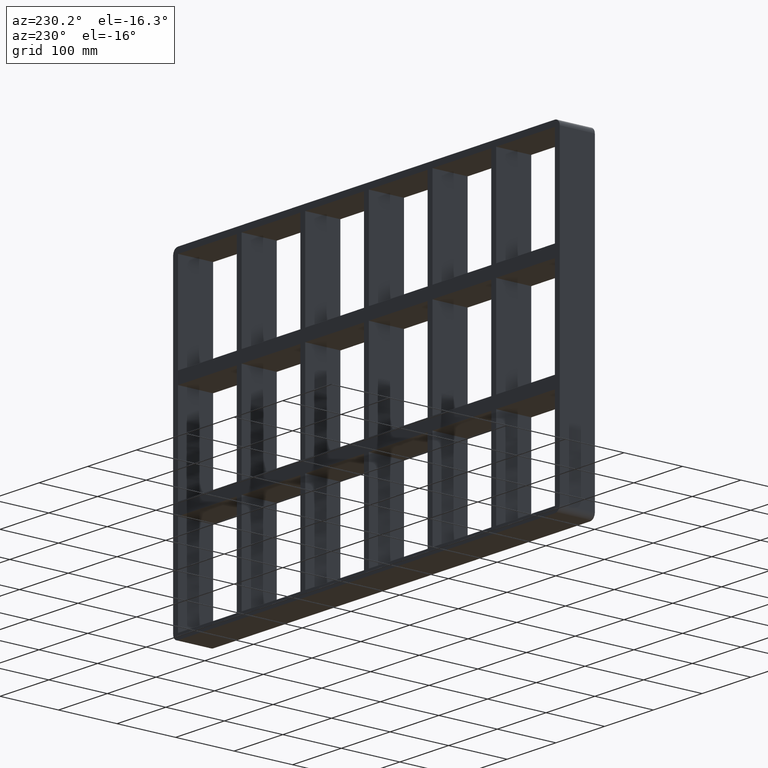
[diagram: clean part render]
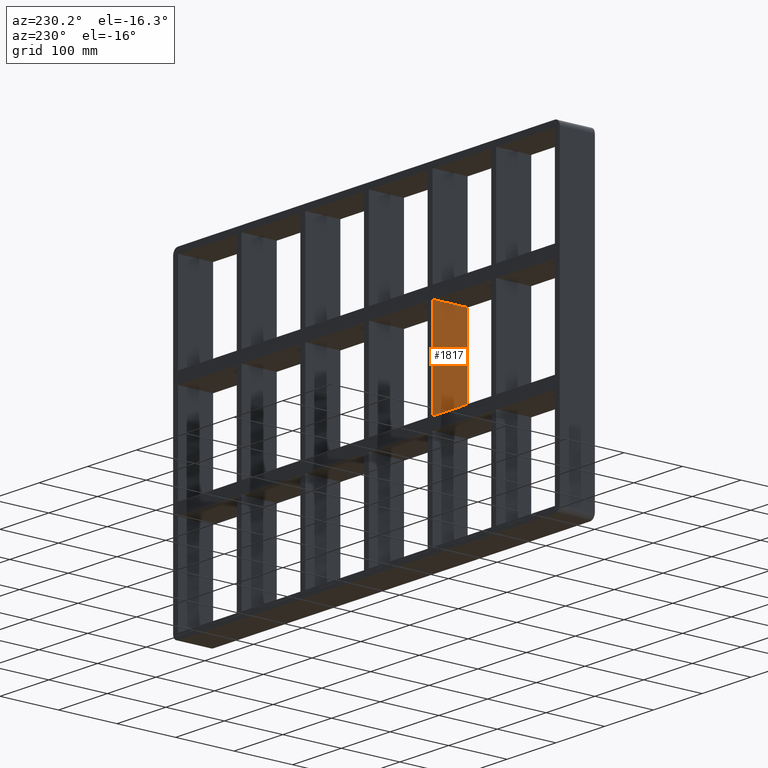
[diagram: same view with one face highlighted and labeled with its STEP entity id]
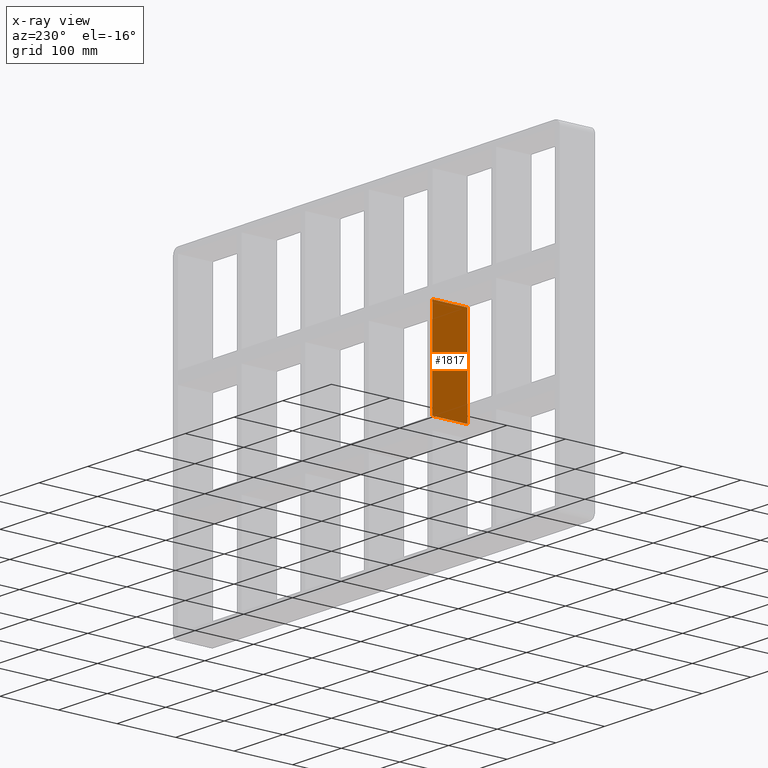
[diagram: x-ray of the same camera — body ghosted, the highlighted face saturated]
A machine part, auxiliary view. The second image highlights one B-rep face of the part: STEP entity #1817.
The next image is the same camera in x-ray: the body ghosted, the highlighted face saturated — about 0% of this face is hidden behind the body in this view.
In plain terms, the highlighted planar face has unit normal (-1, 0, 0).
Its self-contained STEP definition (entity closure, byte-faithful):
#113=CARTESIAN_POINT('',(-135.50000000000131,-3.0,79.74999999999072));
#114=VERTEX_POINT('',#113);
#115=CARTESIAN_POINT('',(-135.50000000000131,57.0,79.74999999999072));
#116=VERTEX_POINT('',#115);
#117=CARTESIAN_POINT('',(-135.50000000000131,-3.0,79.74999999999072));
#118=DIRECTION('',(0.0,1.0,0.0));
#119=VECTOR('',#118,60.0);
#120=LINE('',#117,#119);
#121=EDGE_CURVE('',#114,#116,#120,.T.);
#1232=CARTESIAN_POINT('',(-135.50000000000131,57.0,-79.749999999999943));
#1233=VERTEX_POINT('',#1232);
#1240=CARTESIAN_POINT('',(-135.50000000000131,57.0,-79.749999999999972));
#1241=DIRECTION('',(0.0,0.0,1.0));
#1242=VECTOR('',#1241,159.49999999999065);
#1243=LINE('',#1240,#1242);
#1244=EDGE_CURVE('',#1233,#116,#1243,.T.);
#1794=CARTESIAN_POINT('',(-135.50000000000128,-3.0,-259.25));
#1795=DIRECTION('',(-1.0,0.0,0.0));
#1796=DIRECTION('',(0.0,0.0,1.0));
#1797=AXIS2_PLACEMENT_3D('',#1794,#1795,#1796);
#1798=PLANE('',#1797);
#1799=ORIENTED_EDGE('',*,*,#121,.T.);
#1800=ORIENTED_EDGE('',*,*,#1244,.F.);
#1801=CARTESIAN_POINT('',(-135.50000000000131,-3.0,-79.749999999999943));
#1802=VERTEX_POINT('',#1801);
#1803=CARTESIAN_POINT('',(-135.50000000000134,-3.0,-79.749999999999943));
#1804=DIRECTION('',(0.0,1.0,0.0));
#1805=VECTOR('',#1804,60.0);
#1806=LINE('',#1803,#1805);
#1807=EDGE_CURVE('',#1802,#1233,#1806,.T.);
#1808=ORIENTED_EDGE('',*,*,#1807,.F.);
#1809=CARTESIAN_POINT('',(-135.50000000000131,-3.0,-79.749999999999972));
#1810=DIRECTION('',(0.0,0.0,1.0));
#1811=VECTOR('',#1810,159.49999999999065);
#1812=LINE('',#1809,#1811);
#1813=EDGE_CURVE('',#1802,#114,#1812,.T.);
#1814=ORIENTED_EDGE('',*,*,#1813,.T.);
#1815=EDGE_LOOP('',(#1799,#1800,#1808,#1814));
#1816=FACE_OUTER_BOUND('',#1815,.T.);
#1817=ADVANCED_FACE('',(#1816),#1798,.T.);